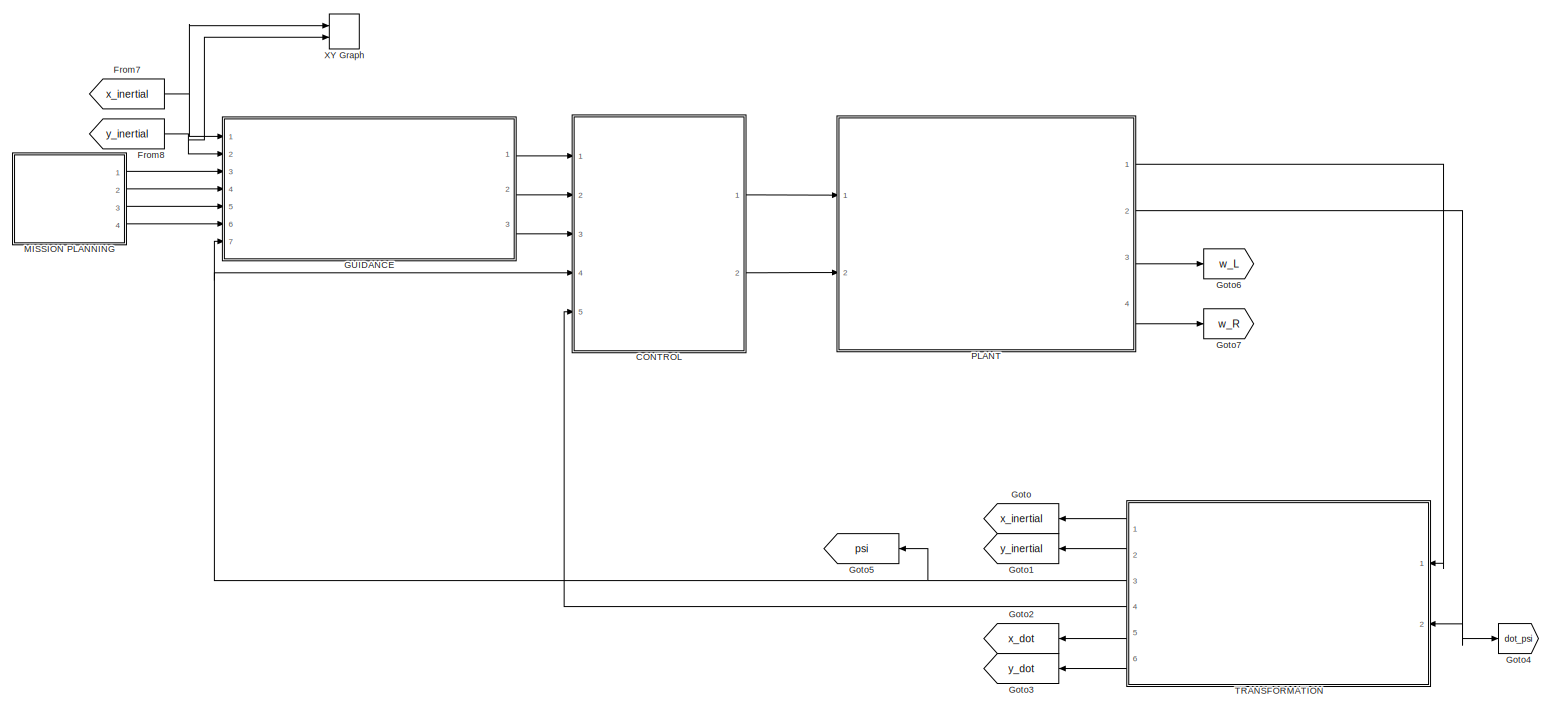
[diagram: root canvas - part 1/4, full width, top band]
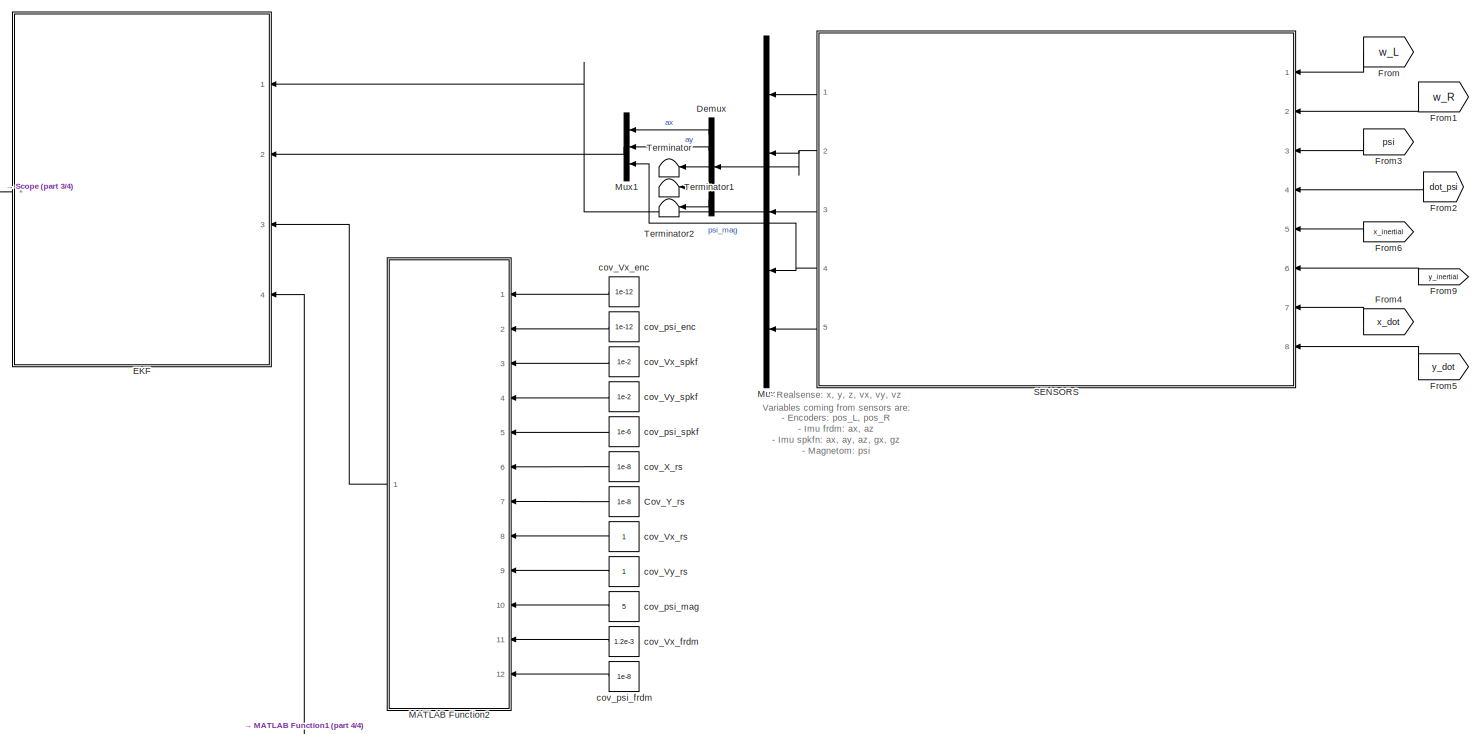
[diagram: root canvas - part 2/4, full width, middle band]
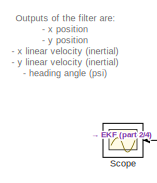
[diagram: root canvas - part 3/4, middle left region]
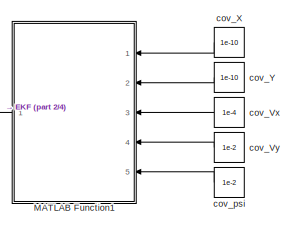
[diagram: root canvas - part 4/4, bottom center region]
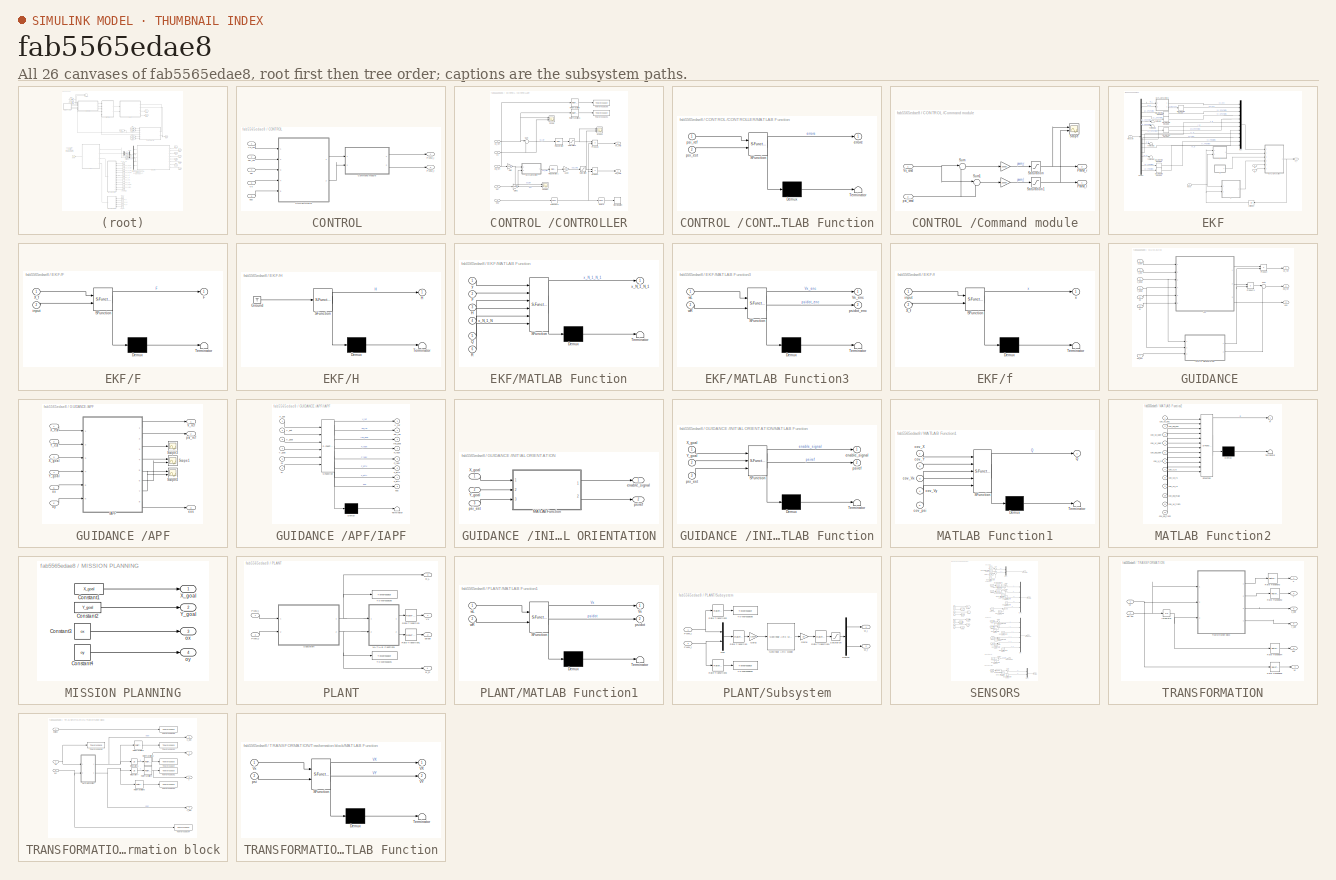
[diagram: thumbnail index - all 26 canvases of the model, root first then tree order]
MODEL slx_fab5565edae8
KIND model
CONFIG AbsTol = auto
CONFIG EnableMultiTasking = off
CONFIG FixedStep = 0.01
CONFIG MaxStep = auto
CONFIG MinStep = auto
CONFIG RelTol = 1e-3
CONFIG SampleTimeConstraint = Unconstrained
CONFIG SolverName = ode1
CONFIG StartTime = 0.0
CONFIG StopTime = 90
BLOCK [SubSystem] CONTROL 
  Ports = [5, 2]
  RequestExecContextInheritance = off
BLOCK [SubSystem] CONTROL /CONTROLLER
  Ports = [5, 2]
  RequestExecContextInheritance = off
BLOCK [Gain] CONTROL /CONTROLLER/1//180
  Gain = 1/180
BLOCK [Gain] CONTROL /CONTROLLER/Gain
  Gain = 180/pi
BLOCK [Gain] CONTROL /CONTROLLER/Gain2
  Gain = 180/pi
BLOCK [Reference] CONTROL /CONTROLLER/IsNonZero  REF=simulink/Logic and Bit
Operations/Compare
To Zero
  Ports = [1, 1]
  SourceBlock = simulink/Logic and Bit\nOperations/Compare\nTo Zero
  SourceProductBaseCode = SL
  SourceType = Compare To Zero
BLOCK [Reference] CONTROL /CONTROLLER/IsZero  REF=simulink/Logic and Bit
Operations/Compare
To Zero
  Ports = [1, 1]
  SourceBlock = simulink/Logic and Bit\nOperations/Compare\nTo Zero
  SourceProductBaseCode = SL
  SourceType = Compare To Zero
BLOCK [SubSystem] CONTROL /CONTROLLER/MATLAB Function
  ErrorFcn = Stateflow.Translate.translate
  PermitHierarchicalResolution = ExplicitOnly
  Ports = [2, 1]
  RequestExecContextInheritance = off
  SFBlockType = MATLAB Function
  TreatAsAtomicUnit = on
BLOCK [Demux] CONTROL /CONTROLLER/MATLAB Function/ Demux 
  Outputs = 1
  Ports = [1, 1]
BLOCK [S-Function] CONTROL /CONTROLLER/MATLAB Function/ SFunction 
  EnableBusSupport = on
  FunctionName = sf_sfun
  PortCounts = [2 2]
  Ports = [2, 2]
  SFcnIsStateOwnerBlock = off
  SFunctionDeploymentMode = off
  Tag = Stateflow S-Function 5
BLOCK [Terminator] CONTROL /CONTROLLER/MATLAB Function/ Terminator 
BLOCK [Outport] CONTROL /CONTROLLER/MATLAB Function/errore
BLOCK [Inport] CONTROL /CONTROLLER/MATLAB Function/psi_est
  Port = 2
BLOCK [Inport] CONTROL /CONTROLLER/MATLAB Function/psi_ref
BLOCK [Reference] CONTROL /CONTROLLER/PID Controller  REF=slpidlib/PID Controller
  Ports = [1, 1]
  SourceBlock = slpidlib/PID Controller
  SourceProductBaseCode = SL
  SourceType = PID 1dof
BLOCK [Reference] CONTROL /CONTROLLER/PID Controller1  REF=slpidlib/PID Controller
  Ports = [1, 1]
  SourceBlock = slpidlib/PID Controller
  SourceProductBaseCode = SL
  SourceType = PID 1dof
BLOCK [Product] CONTROL /CONTROLLER/Product
  Ports = [2, 1]
BLOCK [Product] CONTROL /CONTROLLER/Product1
  Ports = [2, 1]
BLOCK [RateTransition] CONTROL /CONTROLLER/Rate Transition
BLOCK [RateTransition] CONTROL /CONTROLLER/Rate Transition1
BLOCK [Saturate] CONTROL /CONTROLLER/Saturation
BLOCK [Saturate] CONTROL /CONTROLLER/Saturation1
  LowerLimit = -1
  UpperLimit = 1
BLOCK [Scope] CONTROL /CONTROLLER/Scope
  Floating = off
  NumInputPorts = 2
  Ports = [2]
  ScopeSpecificationString = Simulink.scopes.TimeScopeBlockCfg('CurrentConfiguration', extmgr.ConfigurationSet(extmgr.Configuration('Core','General UI',true),extmgr.Configuration('Core','Source UI',true),extmgr.Configuration('Sources','WiredSimulink',true,'DataLoggingVariableName','ScopeData3'),extmgr.Configuration('Visuals','Time Domain',true,'SerializedDisplays',{struct('MinYLimReal','-0.03135','MaxYLimReal','0.28126','YLab...<+1454ch>
BLOCK [Scope] CONTROL /CONTROLLER/Scope1
  Floating = off
  NumInputPorts = 2
  Ports = [2]
  ScopeSpecificationString = Simulink.scopes.TimeScopeBlockCfg('CurrentConfiguration', extmgr.ConfigurationSet(extmgr.Configuration('Core','General UI',true),extmgr.Configuration('Core','Source UI',true),extmgr.Configuration('Sources','WiredSimulink',true,'DataLoggingVariableName','ScopeData2'),extmgr.Configuration('Visuals','Time Domain',true,'SerializedDisplays',{struct('MinYLimReal','-18.40823','MaxYLimReal','7.10625','YLa...<+1471ch>
BLOCK [Scope] CONTROL /CONTROLLER/Scope2
  Floating = off
  NumInputPorts = 2
  Ports = [2]
  ScopeSpecificationString = Simulink.scopes.TimeScopeBlockCfg('CurrentConfiguration', extmgr.ConfigurationSet(extmgr.Configuration('Core','General UI',true),extmgr.Configuration('Core','Source UI',true),extmgr.Configuration('Sources','WiredSimulink',true,'DataLoggingVariableName','ScopeData1'),extmgr.Configuration('Visuals','Time Domain',true,'SerializedDisplays',{struct('MinYLimReal','-1.22577','MaxYLimReal','1.03189','YLab...<+1427ch>
BLOCK [Stop] CONTROL /CONTROLLER/Stop Simulation
BLOCK [Sum] CONTROL /CONTROLLER/Sum
  Inputs = |+-
  Ports = [2, 1]
BLOCK [ToWorkspace] CONTROL /CONTROLLER/To Workspace1
  FixptAsFi = on
  MaxDataPoints = inf
  Ports = [1]
  SampleTime = -1
  SaveFormat = Structure With Time
  VariableName = Vx_ref
BLOCK [ToWorkspace] CONTROL /CONTROLLER/To Workspace5
  FixptAsFi = on
  MaxDataPoints = inf
  Ports = [1]
  SampleTime = -1
  SaveFormat = Structure With Time
  VariableName = psi_ref
BLOCK [Inport] CONTROL /CONTROLLER/Vx
  Port = 4
BLOCK [Outport] CONTROL /CONTROLLER/Vx_cmd
BLOCK [Inport] CONTROL /CONTROLLER/Vx_ref
BLOCK [Inport] CONTROL /CONTROLLER/eos
  Port = 5
BLOCK [Inport] CONTROL /CONTROLLER/psi
  Port = 3
BLOCK [Outport] CONTROL /CONTROLLER/psi_cmd
  Port = 2
BLOCK [Inport] CONTROL /CONTROLLER/psi_ref
  Port = 2
BLOCK [SubSystem] CONTROL /Command module
  Ports = [2, 2]
  RequestExecContextInheritance = off
BLOCK [Gain] CONTROL /Command module/ 
  Gain = 20000
BLOCK [Gain] CONTROL /Command module/   
  Gain = 20000
BLOCK [Outport] CONTROL /Command module/PWM_l
BLOCK [Outport] CONTROL /Command module/PWM_r
  Port = 2
BLOCK [Saturate] CONTROL /Command module/Saturation
  LowerLimit = -20000
  UpperLimit = 20000
BLOCK [Saturate] CONTROL /Command module/Saturation1
  LowerLimit = -20000
  UpperLimit = 20000
BLOCK [Scope] CONTROL /Command module/Scope
  Floating = off
  NumInputPorts = 2
  Ports = [2]
  ScopeSpecificationString = Simulink.scopes.TimeScopeBlockCfg('CurrentConfiguration', extmgr.ConfigurationSet(extmgr.Configuration('Core','General UI',true),extmgr.Configuration('Core','Source UI',true),extmgr.Configuration('Sources','WiredSimulink',true,'DataLoggingVariableName','ScopeData4'),extmgr.Configuration('Visuals','Time Domain',true,'SerializedDisplays',{struct('MinYLimReal','-4186.09821','MaxYLimReal','17004.23029...<+1525ch>
BLOCK [Sum] CONTROL /Command module/Sum
  Inputs = |++
  Ports = [2, 1]
BLOCK [Sum] CONTROL /Command module/Sum1
  Inputs = |+-
  Ports = [2, 1]
BLOCK [Inport] CONTROL /Command module/Vx_cmd
BLOCK [Inport] CONTROL /Command module/psi_cmd
  Port = 2
BLOCK [Outport] CONTROL /PWM_l
BLOCK [Outport] CONTROL /PWM_r
  Port = 2
BLOCK [Inport] CONTROL /Vx
  Port = 5
BLOCK [Inport] CONTROL /Vx_ref
BLOCK [Inport] CONTROL /eos
  Port = 3
BLOCK [Inport] CONTROL /psi
  Port = 4
BLOCK [Inport] CONTROL /psi_ref
  Port = 2
BLOCK [Constant] Cov_Y_rs
  Value = 1e-8
BLOCK [Demux] Demux
  Outputs = 5
  Ports = [1, 5]
BLOCK [SubSystem] EKF
  Ports = [4, 1]
  RequestExecContextInheritance = off
BLOCK [Demux] EKF/Demux
  Outputs = 16
  Ports = [1, 16]
BLOCK [DiscreteIntegrator] EKF/Discrete-Time Integrator
  ICPrevOutput = DiscIntNeverNeededParam
  ICPrevScaledInput = DiscIntNeverNeededParam
  InitialConditionSetting = Auto
  IntegratorMethod = Integration: Backward Euler
  Ports = [1, 1]
  SampleTime = -1
BLOCK [DiscreteIntegrator] EKF/Discrete-Time Integrator1
  ICPrevOutput = DiscIntNeverNeededParam
  ICPrevScaledInput = DiscIntNeverNeededParam
  InitialConditionSetting = Auto
  IntegratorMethod = Integration: Backward Euler
  Ports = [1, 1]
  SampleTime = -1
BLOCK [DiscreteIntegrator] EKF/Discrete-Time Integrator2
  ICPrevOutput = DiscIntNeverNeededParam
  ICPrevScaledInput = DiscIntNeverNeededParam
  InitialConditionSetting = Auto
  IntegratorMethod = Integration: Backward Euler
  Ports = [1, 1]
  SampleTime = -1
BLOCK [DiscreteIntegrator] EKF/Discrete-Time Integrator3
  ICPrevOutput = DiscIntNeverNeededParam
  ICPrevScaledInput = DiscIntNeverNeededParam
  InitialConditionSetting = Auto
  IntegratorMethod = Integration: Backward Euler
  Ports = [1, 1]
  SampleTime = -1
BLOCK [DiscreteIntegrator] EKF/Discrete-Time Integrator4
  ICPrevOutput = DiscIntNeverNeededParam
  ICPrevScaledInput = DiscIntNeverNeededParam
  InitialConditionSetting = Auto
  IntegratorMethod = Integration: Backward Euler
  Ports = [1, 1]
  SampleTime = -1
BLOCK [DiscreteIntegrator] EKF/Discrete-Time Integrator5
  ICPrevOutput = DiscIntNeverNeededParam
  ICPrevScaledInput = DiscIntNeverNeededParam
  InitialConditionSetting = Auto
  IntegratorMethod = Integration: Backward Euler
  Ports = [1, 1]
  SampleTime = -1
BLOCK [SubSystem] EKF/F
  ErrorFcn = Stateflow.Translate.translate
  PermitHierarchicalResolution = ExplicitOnly
  Ports = [2, 1]
  RequestExecContextInheritance = off
  SFBlockType = MATLAB Function
  TreatAsAtomicUnit = on
BLOCK [Demux] EKF/F/ Demux 
  Outputs = 1
  Ports = [1, 1]
BLOCK [S-Function] EKF/F/ SFunction 
  EnableBusSupport = on
  FunctionName = sf_sfun
  PortCounts = [2 2]
  Ports = [2, 2]
  SFcnIsStateOwnerBlock = off
  SFunctionDeploymentMode = off
  Tag = Stateflow S-Function 4
BLOCK [Terminator] EKF/F/ Terminator 
BLOCK [Outport] EKF/F/F
BLOCK [Inport] EKF/F/X_f
BLOCK [Inport] EKF/F/input
  Port = 2
BLOCK [SubSystem] EKF/H
  ErrorFcn = Stateflow.Translate.translate
  PermitHierarchicalResolution = ExplicitOnly
  Ports = [0, 1]
  RequestExecContextInheritance = off
  SFBlockType = MATLAB Function
  TreatAsAtomicUnit = on
BLOCK [Demux] EKF/H/ Demux 
  Outputs = 1
  Ports = [1, 1]
BLOCK [Ground] EKF/H/ Ground 
BLOCK [S-Function] EKF/H/ SFunction 
  EnableBusSupport = on
  FunctionName = sf_sfun
  PortCounts = [1 2]
  Ports = [1, 2]
  SFcnIsStateOwnerBlock = off
  SFunctionDeploymentMode = off
  Tag = Stateflow S-Function 7
BLOCK [Terminator] EKF/H/ Terminator 
BLOCK [Outport] EKF/H/H
BLOCK [SubSystem] EKF/MATLAB Function
  ErrorFcn = Stateflow.Translate.translate
  PermitHierarchicalResolution = ExplicitOnly
  Ports = [6, 1]
  RequestExecContextInheritance = off
  SFBlockType = MATLAB Function
  TreatAsAtomicUnit = on
BLOCK [Demux] EKF/MATLAB Function/ Demux 
  Outputs = 1
  Ports = [1, 1]
BLOCK [S-Function] EKF/MATLAB Function/ SFunction 
  EnableBusSupport = on
  FunctionName = sf_sfun
  PortCounts = [6 2]
  Ports = [6, 2]
  SFcnIsStateOwnerBlock = off
  SFunctionDeploymentMode = off
  Tag = Stateflow S-Function 8
BLOCK [Terminator] EKF/MATLAB Function/ Terminator 
BLOCK [Inport] EKF/MATLAB Function/F
  Port = 2
BLOCK [Inport] EKF/MATLAB Function/H
  Port = 3
BLOCK [Inport] EKF/MATLAB Function/Q
  Port = 5
BLOCK [Inport] EKF/MATLAB Function/R
  Port = 6
BLOCK [Inport] EKF/MATLAB Function/x_N_1_N
  Port = 4
BLOCK [Outport] EKF/MATLAB Function/x_N_1_N_1
BLOCK [Inport] EKF/MATLAB Function/y
BLOCK [SubSystem] EKF/MATLAB Function3
  ErrorFcn = Stateflow.Translate.translate
  PermitHierarchicalResolution = ExplicitOnly
  Ports = [2, 2]
  RequestExecContextInheritance = off
  SFBlockType = MATLAB Function
  TreatAsAtomicUnit = on
BLOCK [Demux] EKF/MATLAB Function3/ Demux 
  Outputs = 1
  Ports = [1, 1]
BLOCK [S-Function] EKF/MATLAB Function3/ SFunction 
  EnableBusSupport = on
  FunctionName = sf_sfun
  PortCounts = [2 3]
  Ports = [2, 3]
  SFcnIsStateOwnerBlock = off
  SFunctionDeploymentMode = off
  Tag = Stateflow S-Function 10
BLOCK [Terminator] EKF/MATLAB Function3/ Terminator 
BLOCK [Outport] EKF/MATLAB Function3/Vx_enc
BLOCK [Outport] EKF/MATLAB Function3/psidot_enc
  Port = 2
BLOCK [Inport] EKF/MATLAB Function3/wL
BLOCK [Inport] EKF/MATLAB Function3/wR
  Port = 2
BLOCK [Inport] EKF/Measure
BLOCK [Mux] EKF/Mux
  DisplayOption = bar
  Inputs = 12
  Ports = [12, 1]
BLOCK [Inport] EKF/Q
  Port = 4
BLOCK [Inport] EKF/R
  Port = 3
BLOCK [Terminator] EKF/Terminator
BLOCK [Terminator] EKF/Terminator1
BLOCK [Terminator] EKF/Terminator2
BLOCK [Terminator] EKF/Terminator3
BLOCK [UnitDelay] EKF/Unit Delay
  HasFrameUpgradeWarning = on
  InitialCondition = [0 0 0 0 0]
  NameLocation = top
  SampleTime = -1
BLOCK [Outport] EKF/X_f
BLOCK [SubSystem] EKF/f
  ErrorFcn = Stateflow.Translate.translate
  PermitHierarchicalResolution = ExplicitOnly
  Ports = [2, 1]
  RequestExecContextInheritance = off
  SFBlockType = MATLAB Function
  TreatAsAtomicUnit = on
BLOCK [Demux] EKF/f/ Demux 
  Outputs = 1
  Ports = [1, 1]
BLOCK [S-Function] EKF/f/ SFunction 
  EnableBusSupport = on
  FunctionName = sf_sfun
  PortCounts = [2 2]
  Ports = [2, 2]
  SFcnIsStateOwnerBlock = off
  SFunctionDeploymentMode = off
  Tag = Stateflow S-Function 9
BLOCK [Terminator] EKF/f/ Terminator 
BLOCK [Inport] EKF/f/X_f
  Port = 2
BLOCK [Inport] EKF/f/input
BLOCK [Outport] EKF/f/x
BLOCK [Inport] EKF/input
  Port = 2
BLOCK [From] From
  GotoTag = w_L
BLOCK [From] From1
  GotoTag = w_R
BLOCK [From] From2
  GotoTag = dot_psi
BLOCK [From] From3
  GotoTag = psi
BLOCK [From] From4
  GotoTag = x_dot
BLOCK [From] From5
  GotoTag = y_dot
BLOCK [From] From6
  GotoTag = x_inertial
BLOCK [From] From7
  GotoTag = x_inertial
BLOCK [From] From8
  GotoTag = y_inertial
BLOCK [From] From9
  GotoTag = y_inertial
BLOCK [SubSystem] GUIDANCE 
  Ports = [7, 3]
  RequestExecContextInheritance = off
BLOCK [SubSystem] GUIDANCE /APF
  Ports = [6, 3]
  RequestExecContextInheritance = off
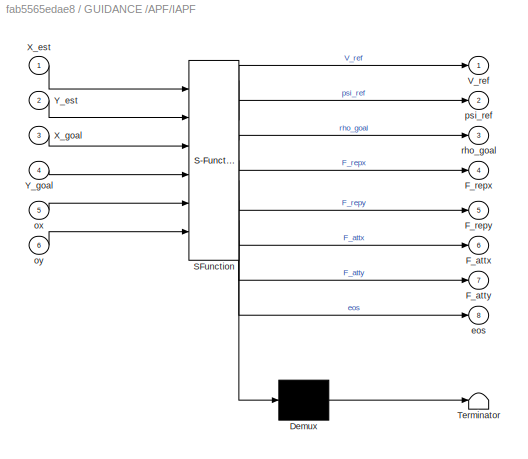
BLOCK [SubSystem] GUIDANCE /APF/IAPF
  ErrorFcn = Stateflow.Translate.translate
  PermitHierarchicalResolution = ExplicitOnly
  Ports = [6, 8]
  RequestExecContextInheritance = off
  SFBlockType = MATLAB Function
  TreatAsAtomicUnit = on
BLOCK [Demux] GUIDANCE /APF/IAPF/ Demux 
  Outputs = 1
  Ports = [1, 1]
BLOCK [S-Function] GUIDANCE /APF/IAPF/ SFunction 
  EnableBusSupport = on
  FunctionName = sf_sfun
  PortCounts = [6 9]
  Ports = [6, 9]
  SFcnIsStateOwnerBlock = off
  SFunctionDeploymentMode = off
  Tag = Stateflow S-Function 6
BLOCK [Terminator] GUIDANCE /APF/IAPF/ Terminator 
BLOCK [Outport] GUIDANCE /APF/IAPF/F_attx
  Port = 6
BLOCK [Outport] GUIDANCE /APF/IAPF/F_atty
  Port = 7
BLOCK [Outport] GUIDANCE /APF/IAPF/F_repx
  Port = 4
BLOCK [Outport] GUIDANCE /APF/IAPF/F_repy
  Port = 5
BLOCK [Outport] GUIDANCE /APF/IAPF/V_ref
BLOCK [Inport] GUIDANCE /APF/IAPF/X_est
BLOCK [Inport] GUIDANCE /APF/IAPF/X_goal
  Port = 3
BLOCK [Inport] GUIDANCE /APF/IAPF/Y_est
  Port = 2
BLOCK [Inport] GUIDANCE /APF/IAPF/Y_goal
  Port = 4
BLOCK [Outport] GUIDANCE /APF/IAPF/eos
  Port = 8
BLOCK [Inport] GUIDANCE /APF/IAPF/ox
  Port = 5
BLOCK [Inport] GUIDANCE /APF/IAPF/oy
  Port = 6
BLOCK [Outport] GUIDANCE /APF/IAPF/psi_ref
  Port = 2
BLOCK [Outport] GUIDANCE /APF/IAPF/rho_goal
  Port = 3
BLOCK [Scope] GUIDANCE /APF/Scope1
  Floating = off
  NumInputPorts = 2
  Ports = [2]
  ScopeSpecificationString = Simulink.scopes.TimeScopeBlockCfg('CurrentConfiguration', extmgr.ConfigurationSet(extmgr.Configuration('Core','General UI',true),extmgr.Configuration('Core','Source UI',true),extmgr.Configuration('Sources','WiredSimulink',true,'DataLoggingVariableName','ScopeData1'),extmgr.Configuration('Visuals','Time Domain',true,'SerializedDisplays',{struct('MinYLimReal','-0.54866','MaxYLimReal','0.29666','YLab...<+1500ch>
BLOCK [Scope] GUIDANCE /APF/Scope3
  Floating = off
  NumInputPorts = 1
  Ports = [1]
  ScopeSpecificationString = Simulink.scopes.TimeScopeBlockCfg('CurrentConfiguration', extmgr.ConfigurationSet(extmgr.Configuration('Core','General UI',true),extmgr.Configuration('Core','Source UI',true),extmgr.Configuration('Sources','WiredSimulink',true,'DataLoggingVariableName','ScopeData5'),extmgr.Configuration('Visuals','Time Domain',true,'SerializedDisplays',{struct('MinYLimReal','-1.36105','MaxYLimReal','12.72551','YLa...<+1420ch>
BLOCK [Scope] GUIDANCE /APF/Scope4
  Floating = off
  NumInputPorts = 2
  Ports = [2]
  ScopeSpecificationString = Simulink.scopes.TimeScopeBlockCfg('CurrentConfiguration', extmgr.ConfigurationSet(extmgr.Configuration('Core','General UI',true),extmgr.Configuration('Core','Source UI',true),extmgr.Configuration('Sources','WiredSimulink',true,'DataLoggingVariableName','ScopeData2'),extmgr.Configuration('Visuals','Time Domain',true,'SerializedDisplays',{struct('MinYLimReal','-0.03267','MaxYLimReal','0.25688','YLab...<+1437ch>
BLOCK [Outport] GUIDANCE /APF/V_ref
BLOCK [Inport] GUIDANCE /APF/X_est
BLOCK [Inport] GUIDANCE /APF/X_goal
  Port = 3
BLOCK [Inport] GUIDANCE /APF/Y_est
  Port = 2
BLOCK [Inport] GUIDANCE /APF/Y_goal
  Port = 4
BLOCK [Outport] GUIDANCE /APF/eos
  Port = 3
BLOCK [Inport] GUIDANCE /APF/ox
  Port = 5
BLOCK [Inport] GUIDANCE /APF/oy
  Port = 6
BLOCK [Outport] GUIDANCE /APF/psi_ref
  Port = 2
BLOCK [SubSystem] GUIDANCE /INITIAL ORIENTATION
  Ports = [3, 2]
  RequestExecContextInheritance = off
BLOCK [SubSystem] GUIDANCE /INITIAL ORIENTATION/MATLAB Function
  ErrorFcn = Stateflow.Translate.translate
  PermitHierarchicalResolution = ExplicitOnly
  Ports = [3, 2]
  RequestExecContextInheritance = off
  SFBlockType = MATLAB Function
  TreatAsAtomicUnit = on
BLOCK [Demux] GUIDANCE /INITIAL ORIENTATION/MATLAB Function/ Demux 
  Outputs = 1
  Ports = [1, 1]
BLOCK [S-Function] GUIDANCE /INITIAL ORIENTATION/MATLAB Function/ SFunction 
  EnableBusSupport = on
  FunctionName = sf_sfun
  PortCounts = [3 3]
  Ports = [3, 3]
  SFcnIsStateOwnerBlock = off
  SFunctionDeploymentMode = off
  Tag = Stateflow S-Function 1
BLOCK [Terminator] GUIDANCE /INITIAL ORIENTATION/MATLAB Function/ Terminator 
BLOCK [Inport] GUIDANCE /INITIAL ORIENTATION/MATLAB Function/X_goal
BLOCK [Inport] GUIDANCE /INITIAL ORIENTATION/MATLAB Function/Y_goal
  Port = 2
BLOCK [Outport] GUIDANCE /INITIAL ORIENTATION/MATLAB Function/enable_signal
BLOCK [Inport] GUIDANCE /INITIAL ORIENTATION/MATLAB Function/psi_est
  Port = 3
BLOCK [Outport] GUIDANCE /INITIAL ORIENTATION/MATLAB Function/psiref
  Port = 2
BLOCK [Inport] GUIDANCE /INITIAL ORIENTATION/X_goal
BLOCK [Inport] GUIDANCE /INITIAL ORIENTATION/Y_goal
  Port = 2
BLOCK [Outport] GUIDANCE /INITIAL ORIENTATION/enable_signal
BLOCK [Inport] GUIDANCE /INITIAL ORIENTATION/psi_est
  Port = 3
BLOCK [Outport] GUIDANCE /INITIAL ORIENTATION/psiref
  Port = 2
BLOCK [Product] GUIDANCE /Product
  Ports = [2, 1]
BLOCK [Product] GUIDANCE /Product1
  Ports = [2, 1]
BLOCK [Sum] GUIDANCE /Sum
  Inputs = |++
  Ports = [2, 1]
BLOCK [Outport] GUIDANCE /Vx_ref
BLOCK [Inport] GUIDANCE /X_est
BLOCK [Inport] GUIDANCE /X_goal
  Port = 3
BLOCK [Inport] GUIDANCE /Y_est
  Port = 2
BLOCK [Inport] GUIDANCE /Y_goal
  Port = 4
BLOCK [Outport] GUIDANCE /eos
  Port = 3
BLOCK [Inport] GUIDANCE /ox
  Port = 5
BLOCK [Inport] GUIDANCE /oy
  Port = 6
BLOCK [Inport] GUIDANCE /psi_est
  Port = 7
BLOCK [Outport] GUIDANCE /psi_ref
  Port = 2
BLOCK [Goto] Goto
  GotoTag = x_inertial
BLOCK [Goto] Goto1
  GotoTag = y_inertial
BLOCK [Goto] Goto2
  GotoTag = x_dot
BLOCK [Goto] Goto3
  GotoTag = y_dot
BLOCK [Goto] Goto4
  GotoTag = dot_psi
BLOCK [Goto] Goto5
  GotoTag = psi
BLOCK [Goto] Goto6
  GotoTag = w_L
BLOCK [Goto] Goto7
  GotoTag = w_R
BLOCK [SubSystem] MATLAB Function1
  ErrorFcn = Stateflow.Translate.translate
  PermitHierarchicalResolution = ExplicitOnly
  Ports = [5, 1]
  RequestExecContextInheritance = off
  SFBlockType = MATLAB Function
  TreatAsAtomicUnit = on
BLOCK [Demux] MATLAB Function1/ Demux 
  Outputs = 1
  Ports = [1, 1]
BLOCK [S-Function] MATLAB Function1/ SFunction 
  EnableBusSupport = on
  FunctionName = sf_sfun
  PortCounts = [5 2]
  Ports = [5, 2]
  SFcnIsStateOwnerBlock = off
  SFunctionDeploymentMode = off
  Tag = Stateflow S-Function 11
BLOCK [Terminator] MATLAB Function1/ Terminator 
BLOCK [Outport] MATLAB Function1/Q
BLOCK [Inport] MATLAB Function1/cov_Vx
  Port = 3
BLOCK [Inport] MATLAB Function1/cov_Vy
  Port = 4
BLOCK [Inport] MATLAB Function1/cov_X
BLOCK [Inport] MATLAB Function1/cov_Y
  Port = 2
BLOCK [Inport] MATLAB Function1/cov_psi
  Port = 5
BLOCK [SubSystem] MATLAB Function2
  ErrorFcn = Stateflow.Translate.translate
  PermitHierarchicalResolution = ExplicitOnly
  Ports = [12, 1]
  RequestExecContextInheritance = off
  SFBlockType = MATLAB Function
  TreatAsAtomicUnit = on
BLOCK [Demux] MATLAB Function2/ Demux 
  Outputs = 1
  Ports = [1, 1]
BLOCK [S-Function] MATLAB Function2/ SFunction 
  EnableBusSupport = on
  FunctionName = sf_sfun
  PortCounts = [12 2]
  Ports = [12, 2]
  SFcnIsStateOwnerBlock = off
  SFunctionDeploymentMode = off
  Tag = Stateflow S-Function 12
BLOCK [Terminator] MATLAB Function2/ Terminator 
BLOCK [Outport] MATLAB Function2/R
BLOCK [Inport] MATLAB Function2/cov_VX_rs
  Port = 8
BLOCK [Inport] MATLAB Function2/cov_VY_rs
  Port = 9
BLOCK [Inport] MATLAB Function2/cov_Vx_enc
BLOCK [Inport] MATLAB Function2/cov_Vx_frdm
  Port = 11
BLOCK [Inport] MATLAB Function2/cov_Vx_spkf
  Port = 3
BLOCK [Inport] MATLAB Function2/cov_Vy_spkf
  Port = 4
BLOCK [Inport] MATLAB Function2/cov_X_rs
  Port = 6
BLOCK [Inport] MATLAB Function2/cov_Y_rs
  Port = 7
BLOCK [Inport] MATLAB Function2/cov_psi_enc
  Port = 2
BLOCK [Inport] MATLAB Function2/cov_psi_frdm
  Port = 12
BLOCK [Inport] MATLAB Function2/cov_psi_mag
  Port = 10
BLOCK [Inport] MATLAB Function2/cov_psi_spkf
  Port = 5
BLOCK [SubSystem] MISSION PLANNING
  Ports = [0, 4]
  RequestExecContextInheritance = off
BLOCK [Constant] MISSION PLANNING/Constant1
  Value = X_goal
BLOCK [Constant] MISSION PLANNING/Constant2
  Value = Y_goal
BLOCK [Constant] MISSION PLANNING/Constant3
  Value = ox
BLOCK [Constant] MISSION PLANNING/Constant4
  Value = oy
BLOCK [Outport] MISSION PLANNING/X_goal
BLOCK [Outport] MISSION PLANNING/Y_goal
  Port = 2
BLOCK [Outport] MISSION PLANNING/ox
  Port = 3
BLOCK [Outport] MISSION PLANNING/oy
  Port = 4
BLOCK [Mux] Mux
  DisplayOption = bar
  Inputs = 5
  Ports = [5, 1]
BLOCK [Mux] Mux1
  DisplayOption = bar
  Inputs = 3
  Ports = [3, 1]
BLOCK [SubSystem] PLANT
  Ports = [2, 4]
  RequestExecContextInheritance = off
BLOCK [SubSystem] PLANT/MATLAB Function1
  ErrorFcn = Stateflow.Translate.translate
  PermitHierarchicalResolution = ExplicitOnly
  Ports = [2, 2]
  RequestExecContextInheritance = off
  SFBlockType = MATLAB Function
  TreatAsAtomicUnit = on
BLOCK [Demux] PLANT/MATLAB Function1/ Demux 
  Outputs = 1
  Ports = [1, 1]
BLOCK [S-Function] PLANT/MATLAB Function1/ SFunction 
  EnableBusSupport = on
  FunctionName = sf_sfun
  PortCounts = [2 3]
  Ports = [2, 3]
  SFcnIsStateOwnerBlock = off
  SFunctionDeploymentMode = off
  Tag = Stateflow S-Function 2
BLOCK [Terminator] PLANT/MATLAB Function1/ Terminator 
BLOCK [Outport] PLANT/MATLAB Function1/Vx
BLOCK [Outport] PLANT/MATLAB Function1/psidot
  Port = 2
BLOCK [Inport] PLANT/MATLAB Function1/wL
BLOCK [Inport] PLANT/MATLAB Function1/wR
  Port = 2
BLOCK [Inport] PLANT/PWM_l
BLOCK [Inport] PLANT/PWM_r
  Port = 2
BLOCK [RateTransition] PLANT/Rate Transition
BLOCK [RateTransition] PLANT/Rate Transition1
BLOCK [SubSystem] PLANT/Subsystem
  Ports = [2, 2]
  RequestExecContextInheritance = off
BLOCK [Demux] PLANT/Subsystem/Demux
  Outputs = 2
  Ports = [1, 2]
BLOCK [Gain] PLANT/Subsystem/Gain2
  Gain = 1/20000
BLOCK [Gain] PLANT/Subsystem/Gain4
  Gain = 20
BLOCK [Mux] PLANT/Subsystem/Mux
  DisplayOption = bar
  Inputs = 2
  Ports = [2, 1]
BLOCK [Reference] PLANT/Subsystem/Nonlinear ARX Model  REF=slident/Models/Nonlinear ARX Model  (lib defined in mdl_f7d4911ca73a)
  Ports = [1, 1]
  SourceBlock = slident/Models/Nonlinear ARX Model
  SourceProductBaseCode = ID
  SourceType = Nonlinear ARX Model
BLOCK [Inport] PLANT/Subsystem/PWM_l
BLOCK [Inport] PLANT/Subsystem/PWM_r
  Port = 2
BLOCK [RateTransition] PLANT/Subsystem/Rate Transition
BLOCK [RateTransition] PLANT/Subsystem/Rate Transition1
BLOCK [RateTransition] PLANT/Subsystem/Rate Transition2
BLOCK [RateTransition] PLANT/Subsystem/Rate Transition3
BLOCK [Saturate] PLANT/Subsystem/Saturation
  LowerLimit = -20
  UpperLimit = 20
BLOCK [ToWorkspace] PLANT/Subsystem/To Workspace1
  FixptAsFi = on
  MaxDataPoints = inf
  Ports = [1]
  SampleTime = -1
  SaveFormat = Structure With Time
  VariableName = pwm_r
BLOCK [ToWorkspace] PLANT/Subsystem/To Workspace5
  FixptAsFi = on
  MaxDataPoints = inf
  Ports = [1]
  SampleTime = -1
  SaveFormat = Structure With Time
  VariableName = pwm_l
BLOCK [Outport] PLANT/Subsystem/w_l
BLOCK [Outport] PLANT/Subsystem/w_r
  Port = 2
BLOCK [ToWorkspace] PLANT/To Workspace1
  FixptAsFi = on
  MaxDataPoints = inf
  Ports = [1]
  SampleTime = -1
  SaveFormat = Structure With Time
  VariableName = wR
BLOCK [ToWorkspace] PLANT/To Workspace5
  FixptAsFi = on
  MaxDataPoints = inf
  Ports = [1]
  SampleTime = -1
  SaveFormat = Structure With Time
  VariableName = wL
BLOCK [Outport] PLANT/Vx
BLOCK [Outport] PLANT/psidot
  Port = 2
BLOCK [Outport] PLANT/w_L
  Port = 3
BLOCK [Outport] PLANT/w_R
  Port = 4
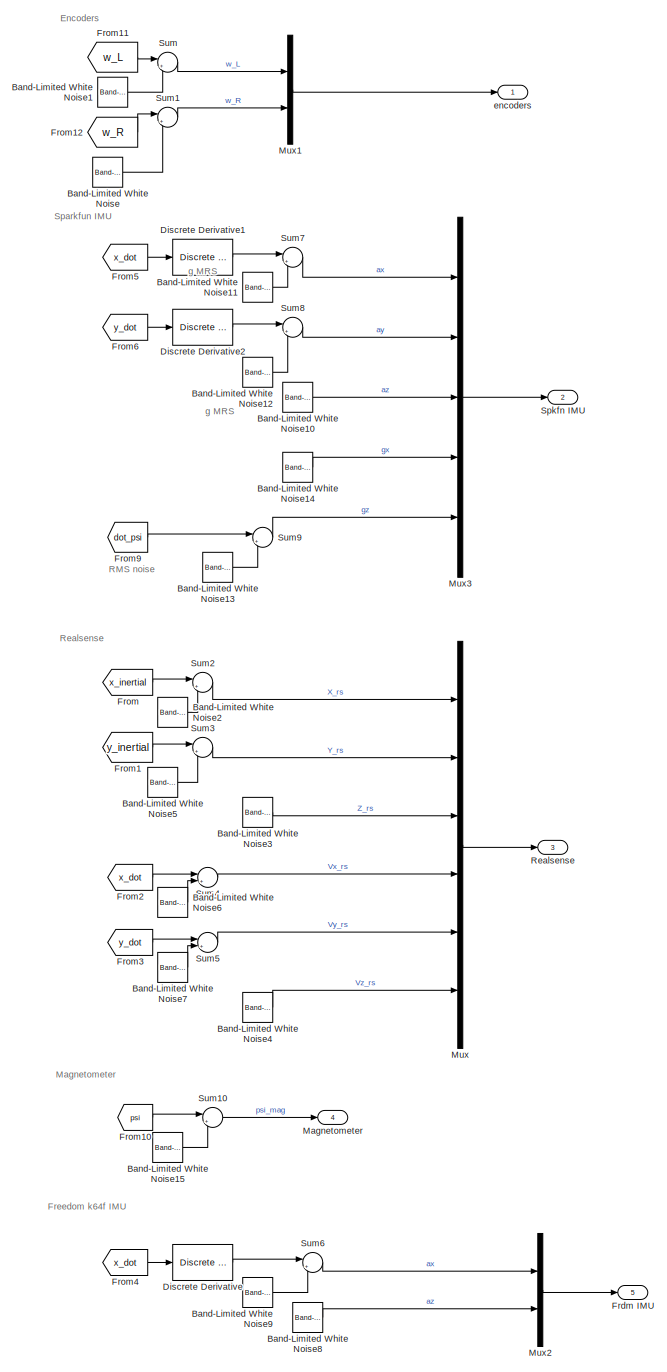
[diagram: SENSORS - part 1/2, right side, full height]
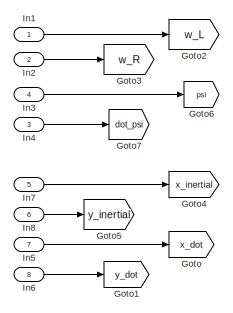
[diagram: SENSORS - part 2/2, middle left region]
BLOCK [SubSystem] SENSORS
  Ports = [8, 5]
  RequestExecContextInheritance = off
BLOCK [Reference] SENSORS/Band-Limited White Noise  REF=simulink/Sources/Band-Limited
White Noise
  Ports = [0, 1]
  SourceBlock = simulink/Sources/Band-Limited\nWhite Noise
  SourceProductBaseCode = SL
  SourceType = Band-Limited White Noise.
BLOCK [Reference] SENSORS/Band-Limited White Noise1  REF=simulink/Sources/Band-Limited
White Noise
  Ports = [0, 1]
  SourceBlock = simulink/Sources/Band-Limited\nWhite Noise
  SourceProductBaseCode = SL
  SourceType = Band-Limited White Noise.
BLOCK [Reference] SENSORS/Band-Limited White Noise10  REF=simulink/Sources/Band-Limited
White Noise
  Ports = [0, 1]
  SourceBlock = simulink/Sources/Band-Limited\nWhite Noise
  SourceProductBaseCode = SL
  SourceType = Band-Limited White Noise.
BLOCK [Reference] SENSORS/Band-Limited White Noise11  REF=simulink/Sources/Band-Limited
White Noise
  Ports = [0, 1]
  SourceBlock = simulink/Sources/Band-Limited\nWhite Noise
  SourceProductBaseCode = SL
  SourceType = Band-Limited White Noise.
BLOCK [Reference] SENSORS/Band-Limited White Noise12  REF=simulink/Sources/Band-Limited
White Noise
  Ports = [0, 1]
  SourceBlock = simulink/Sources/Band-Limited\nWhite Noise
  SourceProductBaseCode = SL
  SourceType = Band-Limited White Noise.
BLOCK [Reference] SENSORS/Band-Limited White Noise13  REF=simulink/Sources/Band-Limited
White Noise
  Ports = [0, 1]
  SourceBlock = simulink/Sources/Band-Limited\nWhite Noise
  SourceProductBaseCode = SL
  SourceType = Band-Limited White Noise.
BLOCK [Reference] SENSORS/Band-Limited White Noise14  REF=simulink/Sources/Band-Limited
White Noise
  Ports = [0, 1]
  SourceBlock = simulink/Sources/Band-Limited\nWhite Noise
  SourceProductBaseCode = SL
  SourceType = Band-Limited White Noise.
BLOCK [Reference] SENSORS/Band-Limited White Noise15  REF=simulink/Sources/Band-Limited
White Noise
  Ports = [0, 1]
  SourceBlock = simulink/Sources/Band-Limited\nWhite Noise
  SourceProductBaseCode = SL
  SourceType = Band-Limited White Noise.
BLOCK [Reference] SENSORS/Band-Limited White Noise2  REF=simulink/Sources/Band-Limited
White Noise
  Ports = [0, 1]
  SourceBlock = simulink/Sources/Band-Limited\nWhite Noise
  SourceProductBaseCode = SL
  SourceType = Band-Limited White Noise.
BLOCK [Reference] SENSORS/Band-Limited White Noise3  REF=simulink/Sources/Band-Limited
White Noise
  Ports = [0, 1]
  SourceBlock = simulink/Sources/Band-Limited\nWhite Noise
  SourceProductBaseCode = SL
  SourceType = Band-Limited White Noise.
BLOCK [Reference] SENSORS/Band-Limited White Noise4  REF=simulink/Sources/Band-Limited
White Noise
  Ports = [0, 1]
  SourceBlock = simulink/Sources/Band-Limited\nWhite Noise
  SourceProductBaseCode = SL
  SourceType = Band-Limited White Noise.
BLOCK [Reference] SENSORS/Band-Limited White Noise5  REF=simulink/Sources/Band-Limited
White Noise
  Ports = [0, 1]
  SourceBlock = simulink/Sources/Band-Limited\nWhite Noise
  SourceProductBaseCode = SL
  SourceType = Band-Limited White Noise.
BLOCK [Reference] SENSORS/Band-Limited White Noise6  REF=simulink/Sources/Band-Limited
White Noise
  Ports = [0, 1]
  SourceBlock = simulink/Sources/Band-Limited\nWhite Noise
  SourceProductBaseCode = SL
  SourceType = Band-Limited White Noise.
BLOCK [Reference] SENSORS/Band-Limited White Noise7  REF=simulink/Sources/Band-Limited
White Noise
  Ports = [0, 1]
  SourceBlock = simulink/Sources/Band-Limited\nWhite Noise
  SourceProductBaseCode = SL
  SourceType = Band-Limited White Noise.
BLOCK [Reference] SENSORS/Band-Limited White Noise8  REF=simulink/Sources/Band-Limited
White Noise
  Ports = [0, 1]
  SourceBlock = simulink/Sources/Band-Limited\nWhite Noise
  SourceProductBaseCode = SL
  SourceType = Band-Limited White Noise.
BLOCK [Reference] SENSORS/Band-Limited White Noise9  REF=simulink/Sources/Band-Limited
White Noise
  Ports = [0, 1]
  SourceBlock = simulink/Sources/Band-Limited\nWhite Noise
  SourceProductBaseCode = SL
  SourceType = Band-Limited White Noise.
BLOCK [Reference] SENSORS/Discrete Derivative  REF=simulink/Discrete/Discrete Derivative
  Ports = [1, 1]
  SourceBlock = simulink/Discrete/Discrete Derivative
  SourceProductBaseCode = SL
  SourceType = Discrete Derivative
BLOCK [Reference] SENSORS/Discrete Derivative1  REF=simulink/Discrete/Discrete Derivative
  Ports = [1, 1]
  SourceBlock = simulink/Discrete/Discrete Derivative
  SourceProductBaseCode = SL
  SourceType = Discrete Derivative
BLOCK [Reference] SENSORS/Discrete Derivative2  REF=simulink/Discrete/Discrete Derivative
  Ports = [1, 1]
  SourceBlock = simulink/Discrete/Discrete Derivative
  SourceProductBaseCode = SL
  SourceType = Discrete Derivative
BLOCK [Outport] SENSORS/Frdm IMU
  Port = 5
BLOCK [From] SENSORS/From
  GotoTag = x_inertial
BLOCK [From] SENSORS/From1
  GotoTag = y_inertial
BLOCK [From] SENSORS/From10
  GotoTag = psi
BLOCK [From] SENSORS/From11
  GotoTag = w_L
BLOCK [From] SENSORS/From12
  GotoTag = w_R
BLOCK [From] SENSORS/From2
  GotoTag = x_dot
BLOCK [From] SENSORS/From3
  GotoTag = y_dot
BLOCK [From] SENSORS/From4
  GotoTag = x_dot
BLOCK [From] SENSORS/From5
  GotoTag = x_dot
BLOCK [From] SENSORS/From6
  GotoTag = y_dot
BLOCK [From] SENSORS/From9
  GotoTag = dot_psi
BLOCK [Goto] SENSORS/Goto
  GotoTag = x_dot
BLOCK [Goto] SENSORS/Goto1
  GotoTag = y_dot
BLOCK [Goto] SENSORS/Goto2
  GotoTag = w_L
BLOCK [Goto] SENSORS/Goto3
  GotoTag = w_R
BLOCK [Goto] SENSORS/Goto4
  GotoTag = x_inertial
BLOCK [Goto] SENSORS/Goto5
  GotoTag = y_inertial
BLOCK [Goto] SENSORS/Goto6
  GotoTag = psi
BLOCK [Goto] SENSORS/Goto7
  GotoTag = dot_psi
BLOCK [Inport] SENSORS/In1
BLOCK [Inport] SENSORS/In2
  Port = 2
BLOCK [Inport] SENSORS/In3
  Port = 4
BLOCK [Inport] SENSORS/In4
  Port = 3
BLOCK [Inport] SENSORS/In5
  Port = 7
BLOCK [Inport] SENSORS/In6
  Port = 8
BLOCK [Inport] SENSORS/In7
  Port = 5
BLOCK [Inport] SENSORS/In8
  Port = 6
BLOCK [Outport] SENSORS/Magnetometer
  Port = 4
BLOCK [Mux] SENSORS/Mux
  DisplayOption = bar
  Inputs = 6
  Ports = [6, 1]
BLOCK [Mux] SENSORS/Mux1
  DisplayOption = bar
  Inputs = 2
  Ports = [2, 1]
BLOCK [Mux] SENSORS/Mux2
  DisplayOption = bar
  Inputs = 2
  Ports = [2, 1]
BLOCK [Mux] SENSORS/Mux3
  DisplayOption = bar
  Inputs = 5
  Ports = [5, 1]
BLOCK [Outport] SENSORS/Realsense
  Port = 3
BLOCK [Outport] SENSORS/Spkfn IMU
  Port = 2
BLOCK [Sum] SENSORS/Sum
  Inputs = |++
  Ports = [2, 1]
BLOCK [Sum] SENSORS/Sum1
  Inputs = |++
  Ports = [2, 1]
BLOCK [Sum] SENSORS/Sum10
  Inputs = |++
  Ports = [2, 1]
BLOCK [Sum] SENSORS/Sum2
  Inputs = |++
  Ports = [2, 1]
BLOCK [Sum] SENSORS/Sum3
  Inputs = |++
  Ports = [2, 1]
BLOCK [Sum] SENSORS/Sum4
  Inputs = |++
  Ports = [2, 1]
BLOCK [Sum] SENSORS/Sum5
  Inputs = |++
  Ports = [2, 1]
BLOCK [Sum] SENSORS/Sum6
  Inputs = |++
  Ports = [2, 1]
BLOCK [Sum] SENSORS/Sum7
  Inputs = |++
  Ports = [2, 1]
BLOCK [Sum] SENSORS/Sum8
  Inputs = |++
  Ports = [2, 1]
BLOCK [Sum] SENSORS/Sum9
  Inputs = |++
  Ports = [2, 1]
BLOCK [Outport] SENSORS/encoders
BLOCK [Scope] Scope
  Floating = off
  NumInputPorts = 1
  Ports = [1]
  ScopeSpecificationString = Simulink.scopes.TimeScopeBlockCfg('CurrentConfiguration', extmgr.ConfigurationSet(extmgr.Configuration('Core','General UI',true),extmgr.Configuration('Core','Source UI',true),extmgr.Configuration('Sources','WiredSimulink',true,'DataLoggingVariableName','ScopeData1'),extmgr.Configuration('Visuals','Time Domain',true,'SerializedDisplays',{struct('MinYLimReal','-0.29088','MaxYLimReal','1.31129','YLab...<+1580ch>
BLOCK [SubSystem] TRANSFORMATION
  Ports = [2, 6]
  RequestExecContextInheritance = off
BLOCK [Outport] TRANSFORMATION/ Vx
  Port = 4
BLOCK [Integrator] TRANSFORMATION/Integrator
  InitialCondition = psi_0
  Ports = [1, 1]
  WrapState = on
BLOCK [RateTransition] TRANSFORMATION/Rate Transition2
  NameLocation = top
  OutPortSampleTime = 0.1
BLOCK [RateTransition] TRANSFORMATION/Rate Transition3
  NameLocation = top
  OutPortSampleTime = 0.1
BLOCK [RateTransition] TRANSFORMATION/Rate Transition4
  NameLocation = top
  OutPortSampleTime = 0.1
BLOCK [RateTransition] TRANSFORMATION/Rate Transition5
  NameLocation = top
  OutPortSampleTime = 0.1
BLOCK [SubSystem] TRANSFORMATION/Trasformation block
  Ports = [3, 4]
  RequestExecContextInheritance = off
BLOCK [Integrator] TRANSFORMATION/Trasformation block/Integrator5
  InitialCondition = X_0
  Ports = [1, 1]
BLOCK [Integrator] TRANSFORMATION/Trasformation block/Integrator7
  InitialCondition = Y_0
  Ports = [1, 1]
BLOCK [SubSystem] TRANSFORMATION/Trasformation block/MATLAB Function
  ErrorFcn = Stateflow.Translate.translate
  PermitHierarchicalResolution = ExplicitOnly
  Ports = [2, 2]
  RequestExecContextInheritance = off
  SFBlockType = MATLAB Function
  TreatAsAtomicUnit = on
BLOCK [Demux] TRANSFORMATION/Trasformation block/MATLAB Function/ Demux 
  Outputs = 1
  Ports = [1, 1]
BLOCK [S-Function] TRANSFORMATION/Trasformation block/MATLAB Function/ SFunction 
  EnableBusSupport = on
  FunctionName = sf_sfun
  PortCounts = [2 3]
  Ports = [2, 3]
  SFcnIsStateOwnerBlock = off
  SFunctionDeploymentMode = off
  Tag = Stateflow S-Function 3
BLOCK [Terminator] TRANSFORMATION/Trasformation block/MATLAB Function/ Terminator 
BLOCK [Outport] TRANSFORMATION/Trasformation block/MATLAB Function/VX
BLOCK [Outport] TRANSFORMATION/Trasformation block/MATLAB Function/VY
  Port = 2
BLOCK [Inport] TRANSFORMATION/Trasformation block/MATLAB Function/Vx
BLOCK [Inport] TRANSFORMATION/Trasformation block/MATLAB Function/psi
  Port = 2
BLOCK [RateTransition] TRANSFORMATION/Trasformation block/Rate Transition2
BLOCK [RateTransition] TRANSFORMATION/Trasformation block/Rate Transition3
BLOCK [RateTransition] TRANSFORMATION/Trasformation block/Rate Transition4
BLOCK [RateTransition] TRANSFORMATION/Trasformation block/Rate Transition5
BLOCK [ToWorkspace] TRANSFORMATION/Trasformation block/To Workspace
  FixptAsFi = on
  MaxDataPoints = inf
  Ports = [1]
  SampleTime = -1
  SaveFormat = Structure With Time
  VariableName = X
BLOCK [ToWorkspace] TRANSFORMATION/Trasformation block/To Workspace1
  FixptAsFi = on
  MaxDataPoints = inf
  Ports = [1]
  SampleTime = -1
  SaveFormat = Structure With Time
  VariableName = Y
BLOCK [ToWorkspace] TRANSFORMATION/Trasformation block/To Workspace2
  FixptAsFi = on
  MaxDataPoints = inf
  Ports = [1]
  SampleTime = -1
  SaveFormat = Structure With Time
  VariableName = Xdot
BLOCK [ToWorkspace] TRANSFORMATION/Trasformation block/To Workspace3
  FixptAsFi = on
  MaxDataPoints = inf
  Ports = [1]
  SampleTime = -1
  SaveFormat = Structure With Time
  VariableName = Ydot
BLOCK [ToWorkspace] TRANSFORMATION/Trasformation block/To Workspace4
  FixptAsFi = on
  MaxDataPoints = inf
  Ports = [1]
  SampleTime = -1
  SaveFormat = Structure With Time
  VariableName = psi
BLOCK [ToWorkspace] TRANSFORMATION/Trasformation block/To Workspace5
  FixptAsFi = on
  MaxDataPoints = inf
  Ports = [1]
  SampleTime = -1
  SaveFormat = Structure With Time
  VariableName = psidot
BLOCK [ToWorkspace] TRANSFORMATION/Trasformation block/To Workspace6
  FixptAsFi = on
  MaxDataPoints = inf
  Ports = [1]
  SampleTime = -1
  SaveFormat = Structure With Time
  VariableName = Vx
BLOCK [Inport] TRANSFORMATION/Trasformation block/Vx
  Port = 2
BLOCK [Outport] TRANSFORMATION/Trasformation block/X
BLOCK [Outport] TRANSFORMATION/Trasformation block/Y
  Port = 2
BLOCK [Inport] TRANSFORMATION/Trasformation block/dot psi
BLOCK [Inport] TRANSFORMATION/Trasformation block/psi
  Port = 3
BLOCK [Outport] TRANSFORMATION/Trasformation block/x_dot
  Port = 3
BLOCK [Outport] TRANSFORMATION/Trasformation block/y_dot
  Port = 4
BLOCK [Inport] TRANSFORMATION/Vx
BLOCK [Outport] TRANSFORMATION/X
BLOCK [Outport] TRANSFORMATION/Y
  Port = 2
BLOCK [Inport] TRANSFORMATION/dot psi
  Port = 2
BLOCK [Outport] TRANSFORMATION/psi
  Port = 3
BLOCK [Outport] TRANSFORMATION/x_dot
  Port = 5
BLOCK [Outport] TRANSFORMATION/y_dot
  Port = 6
BLOCK [Terminator] Terminator
BLOCK [Terminator] Terminator1
BLOCK [Terminator] Terminator2
BLOCK [Record] XY Graph
  CompatibilityTag = XY
  FileSettingsInternal = {"entries":[{"content":{"excelSettings":{"content":{},"type":"Streamout.ExcelSettings"}},"type":"Streamout.FileSettingStorage","uuid":"3af60bd6-fcc2-43a7-958c-c1ebc153ed7f"}],"packageUris":["http://schema.mathworks.com/mf0/streamout_blocks/R2020a"],"version":"1.0"}
  Layout = [1 1]
  Ports = [2]
  SignalsInternal = {"entries":[{"content":{"signals":[{"content":{"blockPath":["Devastator_withSensors/XY Graph"],"channel":[],"dimensions":[1],"domain":"Devastator_withSensors/XY Graph","lineColor":"#a2142f","plots":[1],"port":1,"sid":[""],"signalID":169,"signalName":"From7"},"type":"RecordBlkView.Signal","uuid":"6cde06dc-ba51-45e2-9a36-ccaadfa939b4"},{"content":{"blockPath":["Devastator_withSensors/XY Graph"],"cha...<+413ch>
  VisualizationBindings = {"xyplotplugin":{"info":[{"series":[{"bindingParametersList":[{"parameter":"X-Axis","signalID":169,"signalName":"From7"},{"parameter":"Y-Axis","signalID":173,"signalName":"From8"}],"seriesID":7410}],"subplotID":1}]}}
  st = -1
BLOCK [Constant] cov_Vx
  Value = 1e-4
BLOCK [Constant] cov_Vx_enc
  Value = 1e-12
BLOCK [Constant] cov_Vx_frdm
  Value = 1.2e-3
BLOCK [Constant] cov_Vx_rs
BLOCK [Constant] cov_Vx_spkf
  Value = 1e-2
BLOCK [Constant] cov_Vy
  Value = 1e-2
BLOCK [Constant] cov_Vy_rs
BLOCK [Constant] cov_Vy_spkf
  Value = 1e-2
BLOCK [Constant] cov_X
  Value = 1e-10
BLOCK [Constant] cov_X_rs
  Value = 1e-8
BLOCK [Constant] cov_Y
  Value = 1e-10
BLOCK [Constant] cov_psi
  Value = 1e-2
BLOCK [Constant] cov_psi_enc
  Value = 1e-12
BLOCK [Constant] cov_psi_frdm
  Value = 1e-8
BLOCK [Constant] cov_psi_mag
  Value = 5
BLOCK [Constant] cov_psi_spkf
  Value = 1e-6
ANNOTATION (root): Outputs of the filter are: - x position - y position - x linear velocity (inertial) - y linear velocity (inertial) - heading angle (psi)
ANNOTATION (root): Variables coming from sensors are: - Realsense: x, y, z, vx, vy, vz - Encoders: pos_L, pos_R - Imu frdm: ax, az - Imu spkfn: ax, ay, az, gx, gz - Magnetom: psi
ANNOTATION SENSORS: Encoders
ANNOTATION SENSORS: Freedom k64f IMU
ANNOTATION SENSORS: Magnetometer
ANNOTATION SENSORS: RMS noise
ANNOTATION SENSORS: Realsense
ANNOTATION SENSORS: Sparkfun IMU
ANNOTATION SENSORS: g MRS
LINE CONTROL /CONTROLLER/1//180:1 -> CONTROL /CONTROLLER/Saturation:1
NET CONTROL /CONTROLLER/Gain2:1 -> CONTROL /CONTROLLER/MATLAB Function:2, CONTROL /CONTROLLER/Scope1:2
NET CONTROL /CONTROLLER/Gain:1 -> CONTROL /CONTROLLER/MATLAB Function:1, CONTROL /CONTROLLER/Scope1:1
NET CONTROL /CONTROLLER/IsNonZero:1 -> CONTROL /CONTROLLER/IsZero:1, CONTROL /CONTROLLER/Product1:2, CONTROL /CONTROLLER/Product:2
LINE CONTROL /CONTROLLER/IsZero:1 -> CONTROL /CONTROLLER/Stop Simulation:1
LINE CONTROL /CONTROLLER/MATLAB Function:1 -> CONTROL /CONTROLLER/PID Controller1:1
LINE CONTROL /CONTROLLER/PID Controller1:1 -> CONTROL /CONTROLLER/1//180:1
LINE CONTROL /CONTROLLER/PID Controller:1 -> CONTROL /CONTROLLER/Saturation1:1
LINE CONTROL /CONTROLLER/Product1:1 -> CONTROL /CONTROLLER/Vx_cmd:1
LINE CONTROL /CONTROLLER/Product:1 -> CONTROL /CONTROLLER/psi_cmd:1
LINE CONTROL /CONTROLLER/Rate Transition1:1 -> CONTROL /CONTROLLER/To Workspace1:1
LINE CONTROL /CONTROLLER/Rate Transition:1 -> CONTROL /CONTROLLER/To Workspace5:1
NET CONTROL /CONTROLLER/Saturation1:1 -> CONTROL /CONTROLLER/Product1:1, CONTROL /CONTROLLER/Scope2:1
NET CONTROL /CONTROLLER/Saturation:1 -> CONTROL /CONTROLLER/Product:1, CONTROL /CONTROLLER/Scope2:2
LINE CONTROL /CONTROLLER/Sum:1 -> CONTROL /CONTROLLER/PID Controller:1
NET CONTROL /CONTROLLER/Vx:1 -> CONTROL /CONTROLLER/Scope:2, CONTROL /CONTROLLER/Sum:2
NET CONTROL /CONTROLLER/Vx_ref:1 -> CONTROL /CONTROLLER/Rate Transition1:1, CONTROL /CONTROLLER/Scope:1, CONTROL /CONTROLLER/Sum:1
LINE CONTROL /CONTROLLER/eos:1 -> CONTROL /CONTROLLER/IsNonZero:1
LINE CONTROL /CONTROLLER/psi:1 -> CONTROL /CONTROLLER/Gain2:1
NET CONTROL /CONTROLLER/psi_ref:1 -> CONTROL /CONTROLLER/Gain:1, CONTROL /CONTROLLER/Rate Transition:1
LINE CONTROL /CONTROLLER:1 -> CONTROL /Command module:1
LINE CONTROL /CONTROLLER:2 -> CONTROL /Command module:2
LINE CONTROL /Command module/   :1 -> CONTROL /Command module/Saturation1:1
LINE CONTROL /Command module/ :1 -> CONTROL /Command module/Saturation:1
NET CONTROL /Command module/Saturation1:1 -> CONTROL /Command module/PWM_l:1, CONTROL /Command module/Scope:2
NET CONTROL /Command module/Saturation:1 -> CONTROL /Command module/PWM_r:1, CONTROL /Command module/Scope:1
LINE CONTROL /Command module/Sum1:1 -> CONTROL /Command module/   :1
LINE CONTROL /Command module/Sum:1 -> CONTROL /Command module/ :1
NET CONTROL /Command module/Vx_cmd:1 -> CONTROL /Command module/Sum1:1, CONTROL /Command module/Sum:1
NET CONTROL /Command module/psi_cmd:1 -> CONTROL /Command module/Sum1:2, CONTROL /Command module/Sum:2
LINE CONTROL /Command module:1 -> CONTROL /PWM_l:1
LINE CONTROL /Command module:2 -> CONTROL /PWM_r:1
LINE CONTROL /Vx:1 -> CONTROL /CONTROLLER:4
LINE CONTROL /Vx_ref:1 -> CONTROL /CONTROLLER:1
LINE CONTROL /eos:1 -> CONTROL /CONTROLLER:5
LINE CONTROL /psi:1 -> CONTROL /CONTROLLER:3
LINE CONTROL /psi_ref:1 -> CONTROL /CONTROLLER:2
LINE CONTROL :1 -> PLANT:1
LINE CONTROL :2 -> PLANT:2
LINE Cov_Y_rs:1 -> MATLAB Function2:7
LINE Demux:1 -> Mux1:1
LINE Demux:2 -> Mux1:2
LINE Demux:3 -> Terminator:1
LINE Demux:4 -> Terminator1:1
LINE Demux:5 -> Terminator2:1
LINE EKF/Demux:1 -> EKF/MATLAB Function3:1
LINE EKF/Demux:10 -> EKF/Terminator2:1
LINE EKF/Demux:11 -> EKF/Mux:8
LINE EKF/Demux:12 -> EKF/Mux:9
LINE EKF/Demux:13 -> EKF/Terminator3:1
LINE EKF/Demux:14 -> EKF/Mux:10
LINE EKF/Demux:15 -> EKF/Discrete-Time Integrator2:1
LINE EKF/Demux:16 -> EKF/Discrete-Time Integrator3:1
LINE EKF/Demux:2 -> EKF/MATLAB Function3:2
LINE EKF/Demux:3 -> EKF/Discrete-Time Integrator4:1
LINE EKF/Demux:4 -> EKF/Discrete-Time Integrator5:1
LINE EKF/Demux:5 -> EKF/Terminator:1
LINE EKF/Demux:6 -> EKF/Terminator1:1
LINE EKF/Demux:7 -> EKF/Discrete-Time Integrator1:1
LINE EKF/Demux:8 -> EKF/Mux:6
LINE EKF/Demux:9 -> EKF/Mux:7
LINE EKF/Discrete-Time Integrator1:1 -> EKF/Mux:5
LINE EKF/Discrete-Time Integrator2:1 -> EKF/Mux:11
LINE EKF/Discrete-Time Integrator3:1 -> EKF/Mux:12
LINE EKF/Discrete-Time Integrator4:1 -> EKF/Mux:3
LINE EKF/Discrete-Time Integrator5:1 -> EKF/Mux:4
LINE EKF/Discrete-Time Integrator:1 -> EKF/Mux:2
LINE EKF/F:1 -> EKF/MATLAB Function:2
LINE EKF/H:1 -> EKF/MATLAB Function:3
LINE EKF/MATLAB Function3:1 -> EKF/Mux:1
LINE EKF/MATLAB Function3:2 -> EKF/Discrete-Time Integrator:1
NET EKF/MATLAB Function:1 -> EKF/Unit Delay:1, EKF/X_f:1
LINE EKF/Measure:1 -> EKF/Demux:1
LINE EKF/Mux:1 -> EKF/MATLAB Function:1
LINE EKF/Q:1 -> EKF/MATLAB Function:5
LINE EKF/R:1 -> EKF/MATLAB Function:6
NET EKF/Unit Delay:1 -> EKF/F:1, EKF/f:2
LINE EKF/f:1 -> EKF/MATLAB Function:4
NET EKF/input:1 -> EKF/F:2, EKF/f:1
LINE EKF:1 -> Scope:1
LINE From1:1 -> SENSORS:2
LINE From2:1 -> SENSORS:4
LINE From3:1 -> SENSORS:3
LINE From4:1 -> SENSORS:7
LINE From5:1 -> SENSORS:8
LINE From6:1 -> SENSORS:5
NET From7:1 -> GUIDANCE :1, XY Graph:1
NET From8:1 -> GUIDANCE :2, XY Graph:2
LINE From9:1 -> SENSORS:6
LINE From:1 -> SENSORS:1
LINE GUIDANCE /APF/IAPF:1 -> GUIDANCE /APF/V_ref:1
LINE GUIDANCE /APF/IAPF:2 -> GUIDANCE /APF/psi_ref:1
LINE GUIDANCE /APF/IAPF:3 -> GUIDANCE /APF/Scope3:1
LINE GUIDANCE /APF/IAPF:4 -> GUIDANCE /APF/Scope1:1
LINE GUIDANCE /APF/IAPF:5 -> GUIDANCE /APF/Scope4:1
LINE GUIDANCE /APF/IAPF:6 -> GUIDANCE /APF/Scope1:2
LINE GUIDANCE /APF/IAPF:7 -> GUIDANCE /APF/Scope4:2
LINE GUIDANCE /APF/IAPF:8 -> GUIDANCE /APF/eos:1
LINE GUIDANCE /APF/X_est:1 -> GUIDANCE /APF/IAPF:1
LINE GUIDANCE /APF/X_goal:1 -> GUIDANCE /APF/IAPF:3
LINE GUIDANCE /APF/Y_est:1 -> GUIDANCE /APF/IAPF:2
LINE GUIDANCE /APF/Y_goal:1 -> GUIDANCE /APF/IAPF:4
LINE GUIDANCE /APF/ox:1 -> GUIDANCE /APF/IAPF:5
LINE GUIDANCE /APF/oy:1 -> GUIDANCE /APF/IAPF:6
LINE GUIDANCE /APF:1 -> GUIDANCE /Product:1
LINE GUIDANCE /APF:2 -> GUIDANCE /Product1:1
LINE GUIDANCE /APF:3 -> GUIDANCE /eos:1
LINE GUIDANCE /INITIAL ORIENTATION/MATLAB Function:1 -> GUIDANCE /INITIAL ORIENTATION/enable_signal:1
LINE GUIDANCE /INITIAL ORIENTATION/MATLAB Function:2 -> GUIDANCE /INITIAL ORIENTATION/psiref:1
LINE GUIDANCE /INITIAL ORIENTATION/X_goal:1 -> GUIDANCE /INITIAL ORIENTATION/MATLAB Function:1
LINE GUIDANCE /INITIAL ORIENTATION/Y_goal:1 -> GUIDANCE /INITIAL ORIENTATION/MATLAB Function:2
LINE GUIDANCE /INITIAL ORIENTATION/psi_est:1 -> GUIDANCE /INITIAL ORIENTATION/MATLAB Function:3
NET GUIDANCE /INITIAL ORIENTATION:1 -> GUIDANCE /Product1:2, GUIDANCE /Product:2
LINE GUIDANCE /INITIAL ORIENTATION:2 -> GUIDANCE /Sum:2
LINE GUIDANCE /Product1:1 -> GUIDANCE /Sum:1
LINE GUIDANCE /Product:1 -> GUIDANCE /Vx_ref:1
LINE GUIDANCE /Sum:1 -> GUIDANCE /psi_ref:1
LINE GUIDANCE /X_est:1 -> GUIDANCE /APF:1
NET GUIDANCE /X_goal:1 -> GUIDANCE /APF:3, GUIDANCE /INITIAL ORIENTATION:1
LINE GUIDANCE /Y_est:1 -> GUIDANCE /APF:2
NET GUIDANCE /Y_goal:1 -> GUIDANCE /APF:4, GUIDANCE /INITIAL ORIENTATION:2
LINE GUIDANCE /ox:1 -> GUIDANCE /APF:5
LINE GUIDANCE /oy:1 -> GUIDANCE /APF:6
LINE GUIDANCE /psi_est:1 -> GUIDANCE /INITIAL ORIENTATION:3
LINE GUIDANCE :1 -> CONTROL :1
LINE GUIDANCE :2 -> CONTROL :2
LINE GUIDANCE :3 -> CONTROL :3
LINE MATLAB Function1:1 -> EKF:4
LINE MATLAB Function2:1 -> EKF:3
LINE MISSION PLANNING/Constant1:1 -> MISSION PLANNING/X_goal:1
LINE MISSION PLANNING/Constant2:1 -> MISSION PLANNING/Y_goal:1
LINE MISSION PLANNING/Constant3:1 -> MISSION PLANNING/ox:1
LINE MISSION PLANNING/Constant4:1 -> MISSION PLANNING/oy:1
LINE MISSION PLANNING:1 -> GUIDANCE :3
LINE MISSION PLANNING:2 -> GUIDANCE :4
LINE MISSION PLANNING:3 -> GUIDANCE :5
LINE MISSION PLANNING:4 -> GUIDANCE :6
LINE Mux1:1 -> EKF:2
LINE Mux:1 -> EKF:1
LINE PLANT/MATLAB Function1:1 -> PLANT/Rate Transition:1
LINE PLANT/MATLAB Function1:2 -> PLANT/Rate Transition1:1
LINE PLANT/PWM_l:1 -> PLANT/Subsystem:1
LINE PLANT/PWM_r:1 -> PLANT/Subsystem:2
LINE PLANT/Rate Transition1:1 -> PLANT/psidot:1
LINE PLANT/Rate Transition:1 -> PLANT/Vx:1
LINE PLANT/Subsystem/Demux:1 -> PLANT/Subsystem/w_l:1
LINE PLANT/Subsystem/Demux:2 -> PLANT/Subsystem/w_r:1
LINE PLANT/Subsystem/Gain2:1 -> PLANT/Subsystem/Nonlinear ARX Model:1
LINE PLANT/Subsystem/Gain4:1 -> PLANT/Subsystem/Rate Transition1:1
LINE PLANT/Subsystem/Mux:1 -> PLANT/Subsystem/Rate Transition:1
LINE PLANT/Subsystem/Nonlinear ARX Model:1 -> PLANT/Subsystem/Gain4:1
NET PLANT/Subsystem/PWM_l:1 -> PLANT/Subsystem/Mux:1, PLANT/Subsystem/Rate Transition2:1
NET PLANT/Subsystem/PWM_r:1 -> PLANT/Subsystem/Mux:2, PLANT/Subsystem/Rate Transition3:1
LINE PLANT/Subsystem/Rate Transition1:1 -> PLANT/Subsystem/Saturation:1
LINE PLANT/Subsystem/Rate Transition2:1 -> PLANT/Subsystem/To Workspace5:1
LINE PLANT/Subsystem/Rate Transition3:1 -> PLANT/Subsystem/To Workspace1:1
LINE PLANT/Subsystem/Rate Transition:1 -> PLANT/Subsystem/Gain2:1
LINE PLANT/Subsystem/Saturation:1 -> PLANT/Subsystem/Demux:1
NET PLANT/Subsystem:1 -> PLANT/MATLAB Function1:1, PLANT/To Workspace5:1, PLANT/w_L:1
NET PLANT/Subsystem:2 -> PLANT/MATLAB Function1:2, PLANT/To Workspace1:1, PLANT/w_R:1
LINE PLANT:1 -> TRANSFORMATION:1
NET PLANT:2 -> Goto4:1, TRANSFORMATION:2
LINE PLANT:3 -> Goto6:1
LINE PLANT:4 -> Goto7:1
LINE SENSORS/Band-Limited White Noise10:1 -> SENSORS/Mux3:3
LINE SENSORS/Band-Limited White Noise11:1 -> SENSORS/Sum7:2
LINE SENSORS/Band-Limited White Noise12:1 -> SENSORS/Sum8:2
LINE SENSORS/Band-Limited White Noise13:1 -> SENSORS/Sum9:2
LINE SENSORS/Band-Limited White Noise14:1 -> SENSORS/Mux3:4
LINE SENSORS/Band-Limited White Noise15:1 -> SENSORS/Sum10:2
LINE SENSORS/Band-Limited White Noise1:1 -> SENSORS/Sum:2
LINE SENSORS/Band-Limited White Noise2:1 -> SENSORS/Sum2:2
LINE SENSORS/Band-Limited White Noise3:1 -> SENSORS/Mux:3
LINE SENSORS/Band-Limited White Noise4:1 -> SENSORS/Mux:6
LINE SENSORS/Band-Limited White Noise5:1 -> SENSORS/Sum3:2
LINE SENSORS/Band-Limited White Noise6:1 -> SENSORS/Sum4:2
LINE SENSORS/Band-Limited White Noise7:1 -> SENSORS/Sum5:2
LINE SENSORS/Band-Limited White Noise8:1 -> SENSORS/Mux2:2
LINE SENSORS/Band-Limited White Noise9:1 -> SENSORS/Sum6:2
LINE SENSORS/Band-Limited White Noise:1 -> SENSORS/Sum1:2
LINE SENSORS/Discrete Derivative1:1 -> SENSORS/Sum7:1
LINE SENSORS/Discrete Derivative2:1 -> SENSORS/Sum8:1
LINE SENSORS/Discrete Derivative:1 -> SENSORS/Sum6:1
LINE SENSORS/From10:1 -> SENSORS/Sum10:1
LINE SENSORS/From11:1 -> SENSORS/Sum:1
LINE SENSORS/From12:1 -> SENSORS/Sum1:1
LINE SENSORS/From1:1 -> SENSORS/Sum3:1
LINE SENSORS/From2:1 -> SENSORS/Sum4:1
LINE SENSORS/From3:1 -> SENSORS/Sum5:1
LINE SENSORS/From4:1 -> SENSORS/Discrete Derivative:1
LINE SENSORS/From5:1 -> SENSORS/Discrete Derivative1:1
LINE SENSORS/From6:1 -> SENSORS/Discrete Derivative2:1
LINE SENSORS/From9:1 -> SENSORS/Sum9:1
LINE SENSORS/From:1 -> SENSORS/Sum2:1
LINE SENSORS/In1:1 -> SENSORS/Goto2:1
LINE SENSORS/In2:1 -> SENSORS/Goto3:1
LINE SENSORS/In3:1 -> SENSORS/Goto6:1
LINE SENSORS/In4:1 -> SENSORS/Goto7:1
LINE SENSORS/In5:1 -> SENSORS/Goto:1
LINE SENSORS/In6:1 -> SENSORS/Goto1:1
LINE SENSORS/In7:1 -> SENSORS/Goto4:1
LINE SENSORS/In8:1 -> SENSORS/Goto5:1
LINE SENSORS/Mux1:1 -> SENSORS/encoders:1
LINE SENSORS/Mux2:1 -> SENSORS/Frdm IMU:1
LINE SENSORS/Mux3:1 -> SENSORS/Spkfn IMU:1
LINE SENSORS/Mux:1 -> SENSORS/Realsense:1
LINE SENSORS/Sum10:1 -> SENSORS/Magnetometer:1
LINE SENSORS/Sum1:1 -> SENSORS/Mux1:2
LINE SENSORS/Sum2:1 -> SENSORS/Mux:1
LINE SENSORS/Sum3:1 -> SENSORS/Mux:2
LINE SENSORS/Sum4:1 -> SENSORS/Mux:4
LINE SENSORS/Sum5:1 -> SENSORS/Mux:5
LINE SENSORS/Sum6:1 -> SENSORS/Mux2:1
LINE SENSORS/Sum7:1 -> SENSORS/Mux3:1
LINE SENSORS/Sum8:1 -> SENSORS/Mux3:2
LINE SENSORS/Sum9:1 -> SENSORS/Mux3:5
LINE SENSORS/Sum:1 -> SENSORS/Mux1:1
LINE SENSORS:1 -> Mux:1
NET SENSORS:2 -> Demux:1, Mux:2
LINE SENSORS:3 -> Mux:3
NET SENSORS:4 -> Mux1:3, Mux:4
LINE SENSORS:5 -> Mux:5
NET TRANSFORMATION/Integrator:1 -> TRANSFORMATION/Rate Transition4:1, TRANSFORMATION/Trasformation block:3
LINE TRANSFORMATION/Rate Transition2:1 -> TRANSFORMATION/Y:1
LINE TRANSFORMATION/Rate Transition3:1 -> TRANSFORMATION/X:1
LINE TRANSFORMATION/Rate Transition4:1 -> TRANSFORMATION/psi:1
LINE TRANSFORMATION/Rate Transition5:1 -> TRANSFORMATION/ Vx:1
LINE TRANSFORMATION/Trasformation block/Integrator5:1 -> TRANSFORMATION/Trasformation block/Rate Transition3:1
LINE TRANSFORMATION/Trasformation block/Integrator7:1 -> TRANSFORMATION/Trasformation block/Rate Transition4:1
NET TRANSFORMATION/Trasformation block/MATLAB Function:1 -> TRANSFORMATION/Trasformation block/Integrator5:1, TRANSFORMATION/Trasformation block/Rate Transition2:1, TRANSFORMATION/Trasformation block/x_dot:1
NET TRANSFORMATION/Trasformation block/MATLAB Function:2 -> TRANSFORMATION/Trasformation block/Integrator7:1, TRANSFORMATION/Trasformation block/Rate Transition5:1, TRANSFORMATION/Trasformation block/y_dot:1
LINE TRANSFORMATION/Trasformation block/Rate Transition2:1 -> TRANSFORMATION/Trasformation block/To Workspace2:1
NET TRANSFORMATION/Trasformation block/Rate Transition3:1 -> TRANSFORMATION/Trasformation block/To Workspace:1, TRANSFORMATION/Trasformation block/X:1
NET TRANSFORMATION/Trasformation block/Rate Transition4:1 -> TRANSFORMATION/Trasformation block/To Workspace1:1, TRANSFORMATION/Trasformation block/Y:1
LINE TRANSFORMATION/Trasformation block/Rate Transition5:1 -> TRANSFORMATION/Trasformation block/To Workspace3:1
NET TRANSFORMATION/Trasformation block/Vx:1 -> TRANSFORMATION/Trasformation block/MATLAB Function:1, TRANSFORMATION/Trasformation block/To Workspace6:1
LINE TRANSFORMATION/Trasformation block/dot psi:1 -> TRANSFORMATION/Trasformation block/To Workspace5:1
NET TRANSFORMATION/Trasformation block/psi:1 -> TRANSFORMATION/Trasformation block/MATLAB Function:2, TRANSFORMATION/Trasformation block/To Workspace4:1
LINE TRANSFORMATION/Trasformation block:1 -> TRANSFORMATION/Rate Transition3:1
LINE TRANSFORMATION/Trasformation block:2 -> TRANSFORMATION/Rate Transition2:1
LINE TRANSFORMATION/Trasformation block:3 -> TRANSFORMATION/x_dot:1
LINE TRANSFORMATION/Trasformation block:4 -> TRANSFORMATION/y_dot:1
NET TRANSFORMATION/Vx:1 -> TRANSFORMATION/Rate Transition5:1, TRANSFORMATION/Trasformation block:2
NET TRANSFORMATION/dot psi:1 -> TRANSFORMATION/Integrator:1, TRANSFORMATION/Trasformation block:1
LINE TRANSFORMATION:1 -> Goto:1
LINE TRANSFORMATION:2 -> Goto1:1
NET TRANSFORMATION:3 -> CONTROL :4, GUIDANCE :7, Goto5:1
LINE TRANSFORMATION:4 -> CONTROL :5
LINE TRANSFORMATION:5 -> Goto2:1
LINE TRANSFORMATION:6 -> Goto3:1
LINE cov_Vx:1 -> MATLAB Function1:3
LINE cov_Vx_enc:1 -> MATLAB Function2:1
LINE cov_Vx_frdm:1 -> MATLAB Function2:11
LINE cov_Vx_rs:1 -> MATLAB Function2:8
LINE cov_Vx_spkf:1 -> MATLAB Function2:3
LINE cov_Vy:1 -> MATLAB Function1:4
LINE cov_Vy_rs:1 -> MATLAB Function2:9
LINE cov_Vy_spkf:1 -> MATLAB Function2:4
LINE cov_X:1 -> MATLAB Function1:1
LINE cov_X_rs:1 -> MATLAB Function2:6
LINE cov_Y:1 -> MATLAB Function1:2
LINE cov_psi:1 -> MATLAB Function1:5
LINE cov_psi_enc:1 -> MATLAB Function2:2
LINE cov_psi_frdm:1 -> MATLAB Function2:12
LINE cov_psi_mag:1 -> MATLAB Function2:10
LINE cov_psi_spkf:1 -> MATLAB Function2:5
note: NET lines group one-source signal fan-out (src -> all destinations, sorted); 1:1 wires keep LINE
CHART EKF/H states=1 transitions=1
  STATE_LABEL 'eML_blk_kernel()'
  STATE_LABEL 'SCRIPT:\nfunction H = fcn()\n% The order in this matrix is:\n% vx_encoders\n% psi_encoders\n% vx_SPKFNimu\n% vy_SPKFNimu\n% psi_SPKFNimu\n% x_realsense\n% y_realsense\n% vx_realsense\n% vy_realsense\n% psi_magnetometer\n% vx_FRDMimu\n% vy_FRDMimu\n\nH=[0 0 1 0 0 ;...\n   0 0 0 0 1 ;...\n   0 0 1 0 0 ;...\n   0 0 0 1 0 ;...\n   0 0 0 0 1 ;...\n   1 0 0 0 0 ;...\n   0 1 0 0 0 ;...\n   0 0 1 0 0 ;...\n   0 0 0 1 0;...\n   0 ...<+44ch>'
CHART EKF/MATLAB Function states=1 transitions=1
  STATE_LABEL 'eML_blk_kernel()'
  STATE_LABEL "SCRIPT:\nfunction x_N_1_N_1  = fcn(y, F, H, x_N_1_N, Q, R)\n\nx_N_1_N_1=zeros(5,1);\n\npersistent P_N_N\n\nif isempty(P_N_N)\n    P_N_N = eye(5);\nend\n\n% A priori estimation\nx_N_1_N;\n\n% A priori estimate error covariance matrix\nP_N_1_N = F*P_N_N*F' + Q; \n\n% Filter gain\nK = P_N_1_N*H'/(H*P_N_1_N*H' + R); \n\n% Innovation\nerr = y - H*x_N_1_N;  \n\n% Update of state estimation\nx_N_1_N_1 = x_N_1_N + K*err; \n\n% Upd...<+89ch>"
CHART EKF/f states=1 transitions=1
  STATE_LABEL 'eML_blk_kernel()'
  STATE_LABEL "SCRIPT:\nfunction x = fcn(input, X_f)\ndt=0.2;\n\nX=X_f(1);\nY=X_f(2);\nVx=X_f(3);\nVy=X_f(4);\npsi=X_f(5);\n\nax=input(1);\nay=input(2);\nomega=input(3);\n\ndX= X+(cos(psi)*Vx-sin(psi)*Vy)*dt;\ndY= Y+(sin(psi)*Vx+cos(psi)*Vy)*dt;\ndVx=Vx+(ax+omega*Vy)*dt;\ndVy=Vy+(ay-omega*Vx)*dt;\ndpsi=omega*dt+psi;\n\n\nx=[dX, dY, dVx, dVy, dpsi]';"
CHART EKF/MATLAB Function3 states=1 transitions=1
  STATE_LABEL 'eML_blk_kernel()'
  STATE_LABEL 'SCRIPT:\nfunction [Vx_enc,psidot_enc] = fcn(wL,wR)\nr=0.043/2;\nB=0.185;\n\nVx_enc=r/2*(wR+wL);\npsidot_enc=r/B*(wR-wL);\n'
CHART MATLAB Function1 states=1 transitions=1
  STATE_LABEL 'eML_blk_kernel()'
  STATE_LABEL 'SCRIPT:\nfunction Q = fcn(cov_X, cov_Y, cov_Vx, cov_Vy, cov_psi)\n\nQ=[cov_X    0     0       0         0;...\n    0     cov_Y   0       0         0;...\n    0       0    cov_Vx   0         0;...\n    0       0     0     cov_Vy      0;...\n    0       0     0       0      cov_psi];'
CHART MATLAB Function2 states=1 transitions=1
  STATE_LABEL 'eML_blk_kernel()'
  STATE_LABEL 'SCRIPT:\nfunction R = fcn(cov_Vx_enc, cov_psi_enc, cov_Vx_spkf, cov_Vy_spkf, cov_psi_spkf, cov_X_rs, cov_Y_rs, cov_VX_rs,cov_VY_rs,cov_psi_mag,cov_Vx_frdm,cov_psi_frdm)\n\n\n\n\n\n\nR=eye(12,12);\n\nR(1,1)=cov_Vx_enc;\nR(2,2)=cov_psi_enc;\nR(3,3)=cov_Vx_spkf;\nR(4,4)=cov_Vy_spkf;\nR(5,5)=cov_psi_spkf;\nR(6,6)=cov_X_rs;\nR(7,7)=cov_Y_rs;\nR(8,8)=cov_VX_rs;\nR(9,9)=cov_VY_rs;\nR(10,10)=cov_psi_mag;\nR(11,11)=cov_Vx_frd...<+25ch>'
CHART GUIDANCE /INITIAL ORIENTATION/MATLAB Function states=1 transitions=1
  STATE_LABEL 'eML_blk_kernel()'
  STATE_LABEL 'SCRIPT:\nfunction [enable_signal, psiref] = fcn(X_goal, Y_goal, psi_est)\npsiref=0;\nenable_signal=0;\n\npersistent en\nif isempty(en)\n    en=0;\nend\n\nif en==0\nif -pi<psi_est && psi_est<=-pi/2 \n  if X_goal>=0 && Y_goal>=0\n      enable_signal=0;\n      psiref=0;\n      en=0;\n  end\n   if X_goal>0 && Y_goal<0\n      enable_signal=0;\n      psiref=0;\n      en=0;\n   end\n    if X_goal<=0 && Y_goal<=0\n      enable_...<+952ch>'
CHART PLANT/MATLAB Function1 states=1 transitions=1
  STATE_LABEL 'eML_blk_kernel()'
  STATE_LABEL 'SCRIPT:\nfunction [Vx, psidot] = fcn(wL, wR)\nr=0.043/2;\nB=0.185;\n\nVx=(wR+wL)*r/2;\npsidot=(wR-wL)*r/B;\n'
CHART TRANSFORMATION/Trasformation block/MATLAB Function states=1 transitions=1
  STATE_LABEL 'eML_blk_kernel()'
  STATE_LABEL 'SCRIPT:\nfunction [VX, VY] = fcn(Vx, psi)\n\nM=[cos(psi) -sin(psi); sin(psi) cos(psi)];\n\nX=M*Vx;\nVX=X(1);\nVY=X(2);\n\n'
CHART EKF/F states=1 transitions=1
  STATE_LABEL 'eML_blk_kernel()'
  STATE_LABEL 'SCRIPT:\nfunction F = fcn(X_f,input)\n\nF=zeros(5,5);\nX=X_f(1);\nY=X_f(2);\nVx=X_f(3);\nVy=X_f(4);\npsi=X_f(5);\n\nomega=input(3);\n\ndt=0.2;\n\nF=[1 0 dt*cos(psi) dt*(-sin(psi)) (-Vx*sin(psi)-cos(psi)*Vy)*dt; ...\n   0 1 dt*sin(psi) dt*cos(psi) (cos(psi)*Vx-sin(psi)*Vy)*dt; ...\n   0 0 1 omega*dt 0; ...\n   0 0 -omega*dt 1 0; ...\n   0 0 0 0 1];\n\n'
CHART CONTROL /CONTROLLER/MATLAB Function states=1 transitions=1
  STATE_LABEL 'eML_blk_kernel()'
  STATE_LABEL 'SCRIPT:\nfunction errore = fcn(psi_ref, psi_est)\nerrore=psi_ref-psi_est;\n\nif abs(errore)>180\n    errore=errore-360*sign(errore);\nend\n'
CHART GUIDANCE /APF/IAPF states=1 transitions=1
  STATE_LABEL 'eML_blk_kernel()'
  STATE_LABEL "SCRIPT:\nfunction [V_ref, psi_ref, rho_goal, F_repx, F_repy, F_attx, F_atty, eos]  = fcn(X_est, Y_est, X_goal, Y_goal,  ox, oy)\n\n% Potential field characteristics\nrho_0=0.7;                   % Area of influence of obstacle  [m]\nkp = 0.15;                   % Attractive pottential gain\neta = 0.05;                  % Repulsive potential gain\n\nq=[X_est, Y_est]';           % Actual position [m]       ...<+1827ch>"
CHART  states=0 transitions=0
CHART  states=0 transitions=0
CHART  states=0 transitions=0
CHART  states=0 transitions=0
CHART  states=0 transitions=0
CHART  states=0 transitions=0
CHART  states=0 transitions=0
CHART  states=0 transitions=0
CHART  states=0 transitions=0
CHART  states=0 transitions=0
CHART  states=0 transitions=0
CHART  states=0 transitions=0
